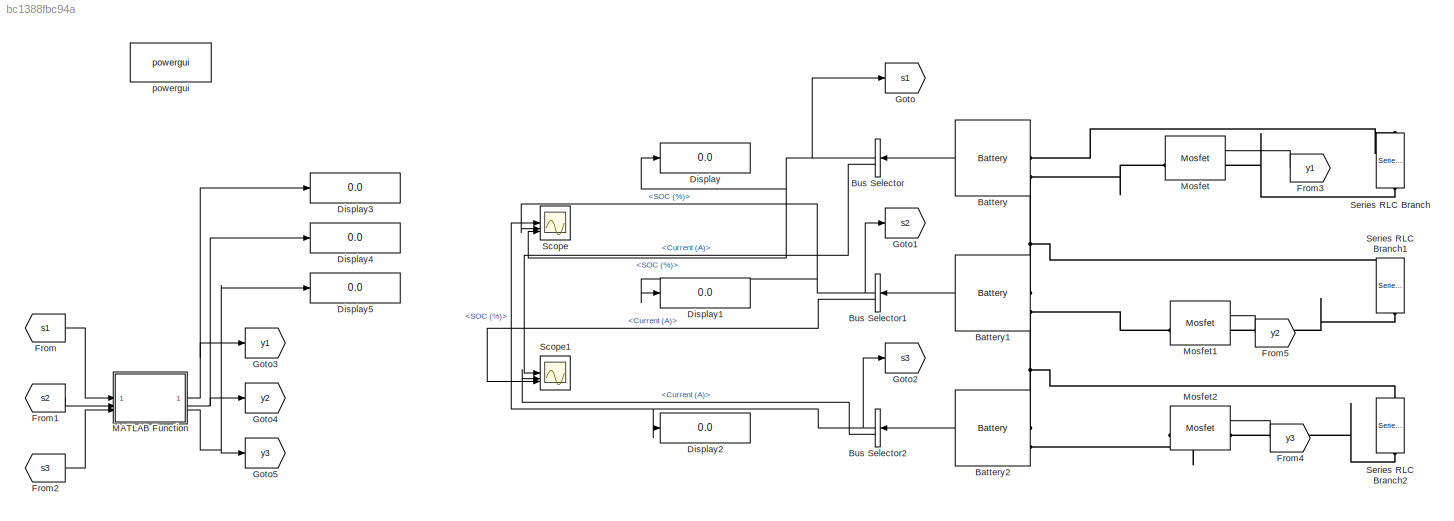
MODEL slx_bc1388fbc94a
KIND model
CONFIG AbsTol = auto
CONFIG EnableMultiTasking = off
CONFIG FixedStep = auto
CONFIG MaxStep = auto
CONFIG MinStep = auto
CONFIG RelTol = 1e-3
CONFIG SampleTimeConstraint = Unconstrained
CONFIG SolverName = VariableStepAuto
CONFIG StartTime = 0.0
CONFIG StopTime = 3500
BLOCK [Reference] Battery  REF=spsBatteryLib/Battery
  LibrarySourceBlock = sps_lib/Sources/Battery
  SourceBlock = spsBatteryLib/Battery
  SourceType = Battery
BLOCK [Reference] Battery1  REF=spsBatteryLib/Battery
  LibrarySourceBlock = sps_lib/Sources/Battery
  SourceBlock = spsBatteryLib/Battery
  SourceType = Battery
BLOCK [Reference] Battery2  REF=spsBatteryLib/Battery
  LibrarySourceBlock = sps_lib/Sources/Battery
  SourceBlock = spsBatteryLib/Battery
  SourceType = Battery
BLOCK [BusSelector] Bus Selector
  NameLocation = top
  OutputSignals = SOC (%),Current (A)
BLOCK [BusSelector] Bus Selector1
  NameLocation = top
  OutputSignals = SOC (%),Current (A)
BLOCK [BusSelector] Bus Selector2
  NameLocation = top
  OutputSignals = SOC (%),Current (A)
BLOCK [Display] Display
  Decimation = 1
BLOCK [Display] Display1
  Decimation = 1
BLOCK [Display] Display2
  Decimation = 1
BLOCK [Display] Display3
  Decimation = 1
BLOCK [Display] Display4
  Decimation = 1
BLOCK [Display] Display5
  Decimation = 1
BLOCK [From] From
  GotoTag = s1
BLOCK [From] From1
  GotoTag = s2
BLOCK [From] From2
  GotoTag = s3
BLOCK [From] From3
  GotoTag = y1
  NameLocation = top
BLOCK [From] From4
  GotoTag = y3
  NameLocation = top
BLOCK [From] From5
  GotoTag = y2
  NameLocation = top
BLOCK [Goto] Goto
  GotoTag = s1
BLOCK [Goto] Goto1
  GotoTag = s2
BLOCK [Goto] Goto2
  GotoTag = s3
BLOCK [Goto] Goto3
  GotoTag = y1
BLOCK [Goto] Goto4
  GotoTag = y2
BLOCK [Goto] Goto5
  GotoTag = y3
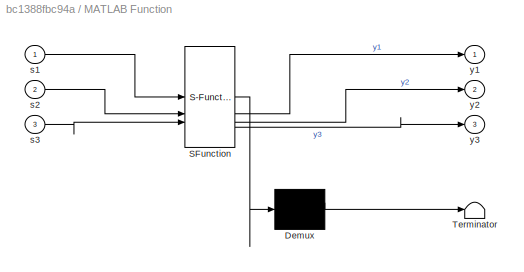
BLOCK [SubSystem] MATLAB Function
  ErrorFcn = Stateflow.Translate.translate
  LibrarySourceBlock = simulink/User-Defined\nFunctions/MATLAB Function
  PermitHierarchicalResolution = ExplicitOnly
  SFBlockType = MATLAB Function
  TreatAsAtomicUnit = on
BLOCK [Demux] MATLAB Function/ Demux 
  Outputs = 1
BLOCK [S-Function] MATLAB Function/ SFunction 
  EnableBusSupport = on
  FunctionName = sf_sfun
  PortCounts = [3 4]
  SFcnIsStateOwnerBlock = off
  SFunctionDeploymentMode = off
  Tag = Stateflow S-Function 2
BLOCK [Terminator] MATLAB Function/ Terminator 
BLOCK [Inport] MATLAB Function/s1
BLOCK [Inport] MATLAB Function/s2
  Port = 2
BLOCK [Inport] MATLAB Function/s3
  Port = 3
BLOCK [Outport] MATLAB Function/y1
BLOCK [Outport] MATLAB Function/y2
  Port = 2
BLOCK [Outport] MATLAB Function/y3
  Port = 3
BLOCK [Reference] Mosfet  REF=spsMosfetLib/Mosfet
  LibrarySourceBlock = sps_lib/Power Electronics/Mosfet
  NameLocation = top
  SourceBlock = spsMosfetLib/Mosfet
  SourceType = Mosfet
BLOCK [Reference] Mosfet1  REF=spsMosfetLib/Mosfet
  LibrarySourceBlock = sps_lib/Power Electronics/Mosfet
  NameLocation = top
  SourceBlock = spsMosfetLib/Mosfet
  SourceType = Mosfet
BLOCK [Reference] Mosfet2  REF=spsMosfetLib/Mosfet
  LibrarySourceBlock = sps_lib/Power Electronics/Mosfet
  NameLocation = top
  SourceBlock = spsMosfetLib/Mosfet
  SourceType = Mosfet
BLOCK [Scope] Scope
  Floating = off
  NumInputPorts = 3
  ScopeSpecificationString = Simulink.scopes.TimeScopeBlockCfg('CurrentConfiguration', extmgr.ConfigurationSet(extmgr.Configuration('Core','General UI',true),extmgr.Configuration('Core','Source UI',true),extmgr.Configuration('Sources','WiredSimulink',true),extmgr.Configuration('Visuals','Time Domain',true),extmgr.Configuration('Tools','Plot Navigation',true),extmgr.Configuration('Tools','Measurements',true)),'Version','2023a'...<+1ch>
BLOCK [Scope] Scope1
  Floating = off
  NumInputPorts = 3
  ScopeSpecificationString = Simulink.scopes.TimeScopeBlockCfg('CurrentConfiguration', extmgr.ConfigurationSet(extmgr.Configuration('Core','General UI',true),extmgr.Configuration('Core','Source UI',true),extmgr.Configuration('Sources','WiredSimulink',true,'DataLoggingVariableName','ScopeData1'),extmgr.Configuration('Visuals','Time Domain',true),extmgr.Configuration('Tools','Plot Navigation',true),extmgr.Configuration('Tools',...<+40ch>
BLOCK [Reference] Series RLC Branch  REF=spsSeriesRLCBranchLib/Series RLC Branch
  LibrarySourceBlock = sps_lib/Passives/Series RLC Branch
  NameLocation = left
  SourceBlock = spsSeriesRLCBranchLib/Series RLC Branch
  SourceType = Series RLC Branch
BLOCK [Reference] Series RLC Branch1  REF=spsSeriesRLCBranchLib/Series RLC Branch
  LibrarySourceBlock = sps_lib/Passives/Series RLC Branch
  NameLocation = left
  SourceBlock = spsSeriesRLCBranchLib/Series RLC Branch
  SourceType = Series RLC Branch
BLOCK [Reference] Series RLC Branch2  REF=spsSeriesRLCBranchLib/Series RLC Branch
  LibrarySourceBlock = sps_lib/Passives/Series RLC Branch
  NameLocation = left
  SourceBlock = spsSeriesRLCBranchLib/Series RLC Branch
  SourceType = Series RLC Branch
BLOCK [Reference] powergui  REF=sps_lib/powergui
  Priority = 1
  SourceBlock = sps_lib/powergui
  SourceType = PSB option menu block
LINE Battery1:1 -> Bus Selector1:1
LINE Battery2:1 -> Bus Selector2:1
LINE Battery:1 -> Bus Selector:1
NET Bus Selector1:1 -> Display1:1, Goto1:1, Scope:2
LINE Bus Selector1:2 -> Scope1:3
NET Bus Selector2:1 -> Display2:1, Goto2:1, Scope:1
LINE Bus Selector2:2 -> Scope1:2
NET Bus Selector:1 -> Display:1, Goto:1, Scope:3
LINE Bus Selector:2 -> Scope1:1
LINE From1:1 -> MATLAB Function:2
LINE From2:1 -> MATLAB Function:3
LINE From3:1 -> Mosfet:1
LINE From4:1 -> Mosfet2:1
LINE From5:1 -> Mosfet1:1
LINE From:1 -> MATLAB Function:1
NET MATLAB Function:1 -> Display3:1, Goto3:1
NET MATLAB Function:2 -> Display4:1, Goto4:1
NET MATLAB Function:3 -> Display5:1, Goto5:1
PNET net1: Battery1:LConn1 -- Battery:LConn2 -- Mosfet:RConn1 -- Series RLC Branch1:LConn1
PNET net2: Battery1:LConn2 -- Battery2:LConn1 -- Mosfet1:RConn1 -- Series RLC Branch2:LConn1
PLINE Battery2:LConn2 -- Mosfet2:RConn1
PLINE Battery:LConn1 -- Series RLC Branch:LConn1
PLINE Mosfet1:LConn1 -- Series RLC Branch1:RConn1
PLINE Mosfet2:LConn1 -- Series RLC Branch2:RConn1
PLINE Mosfet:LConn1 -- Series RLC Branch:RConn1
note: NET lines group one-source signal fan-out (src -> all destinations, sorted); 1:1 wires keep LINE; PNET lines group multi-terminal physical nets as a canonical sorted terminal list (undirected conserving connections); 2-terminal nets keep the pairwise PLINE form
CHART MATLAB Function states=1 transitions=1
  STATE_LABEL 'eML_blk_kernel()'
  STATE_LABEL 'SCRIPT:\nfunction [y1, y2, y3]= fcn(s1, s2, s3)\ns1 = int16(s1);\ns2 = int16(s2);\ns3 = int16(s3);\n\na = min([s1 s2 s3]);\nif(s1 == a)\n    if (s1 == a && s2 == a)\n        y1 = 0;\n        y2 = 0;\n        y3 = 1;\n    elseif (s1 == a && s3 == a)\n        y1 = 0;\n        y2 = 1;\n        y3 = 0;\n    elseif (s1 == a)\n        y1 = 0;\n        y2 = 1;\n        y3 = 1;\n    else \n        y1 = 0;\n        y2 = 0;\n    ...<+677ch>'
CHART  states=0 transitions=0
